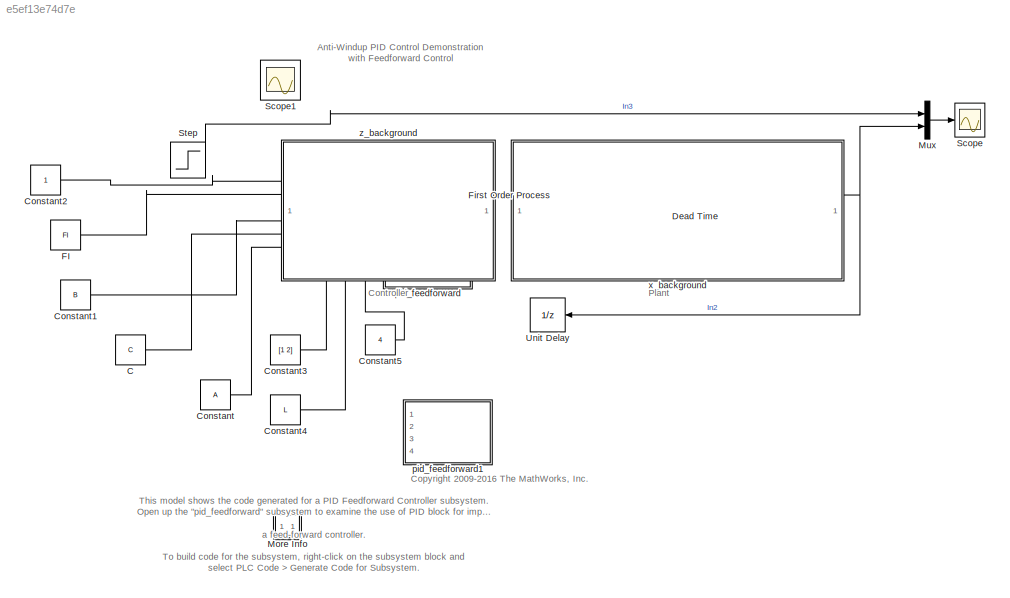
MODEL slx_e5ef13e74d7e
KIND model
CONFIG AbsTol = auto
CONFIG EnableMultiTasking = on
CONFIG FixedStep = 1
CONFIG MaxStep = auto
CONFIG MinStep = auto
CONFIG RelTol = 1e-5
CONFIG SampleTimeConstraint = Unconstrained
CONFIG Solver = ode8
CONFIG SolverName = ode8
CONFIG StartTime = 0.0
CONFIG StopTime = 200
BLOCK [Constant] C
  Value = C
  VectorParams1D = off
BLOCK [Constant] Constant
  Value = A
  VectorParams1D = off
BLOCK [Constant] Constant1
  Value = B
  VectorParams1D = off
BLOCK [Constant] Constant2
  VectorParams1D = off
BLOCK [Constant] Constant3
  Value = [1 2]
  VectorParams1D = off
BLOCK [Constant] Constant4
  Value = L
  VectorParams1D = off
BLOCK [Constant] Constant5
  Value = 4
  VectorParams1D = off
BLOCK [TransportDelay] Dead Time
  BufferSize = 2048
  DelayTime = 2
  Ports = [1, 1]
BLOCK [Constant] FI
  Value = FI
BLOCK [TransferFcn] First Order Process
  Denominator = [10 1]
  Numerator = 1
BLOCK [SubSystem] More Info
  OpenFcn = showdemo('sldemo_antiwindup')
  Ports = []
  RequestExecContextInheritance = off
BLOCK [Mux] Mux
  DisplayOption = bar
  Inputs = 2
  Ports = [2, 1]
BLOCK [Scope] Scope
  Floating = off
  NumInputPorts = 1
  Ports = [1]
  ScopeSpecificationString = Simulink.scopes.TimeScopeBlockCfg('CurrentConfiguration', extmgr.ConfigurationSet(extmgr.Configuration('Core','General UI',true,'MessageLogAutoOpenMode','for warn/fail messages','ShowCloseAll',true,'ShowBringAllForward',true),extmgr.Configuration('Core','Source UI',true,'PlaybackToolbar',true),extmgr.Configuration('Sources','WiredSimulink',true,'PointsPerSignal',50000,'DataLoggingLimitDataPoints',...<+1203ch>
BLOCK [Scope] Scope1
  Floating = off
  IOType = viewer
  NumInputPorts = 1
  Ports = []
  ScopeSpecificationString = Simulink.scopes.TimeScopeBlockCfg('CurrentConfiguration', extmgr.ConfigurationSet(extmgr.Configuration('Core','General UI',true),extmgr.Configuration('Core','Source UI',true),extmgr.Configuration('Sources','WiredSimulink',true,'DataLoggingMaxPoints','7500','DataLoggingSaveFormat','Array','DataLoggingDecimation','1','DataLoggingDecimateData',true),extmgr.Configuration('Visuals','Time Domain',true,'...<+1653ch>
BLOCK [Step] Step
  After = 5
  Before = 10
  SampleTime = 0
  Time = 80
BLOCK [UnitDelay] Unit Delay
  InputProcessing = Elements as channels (sample based)
  SampleTime = -1
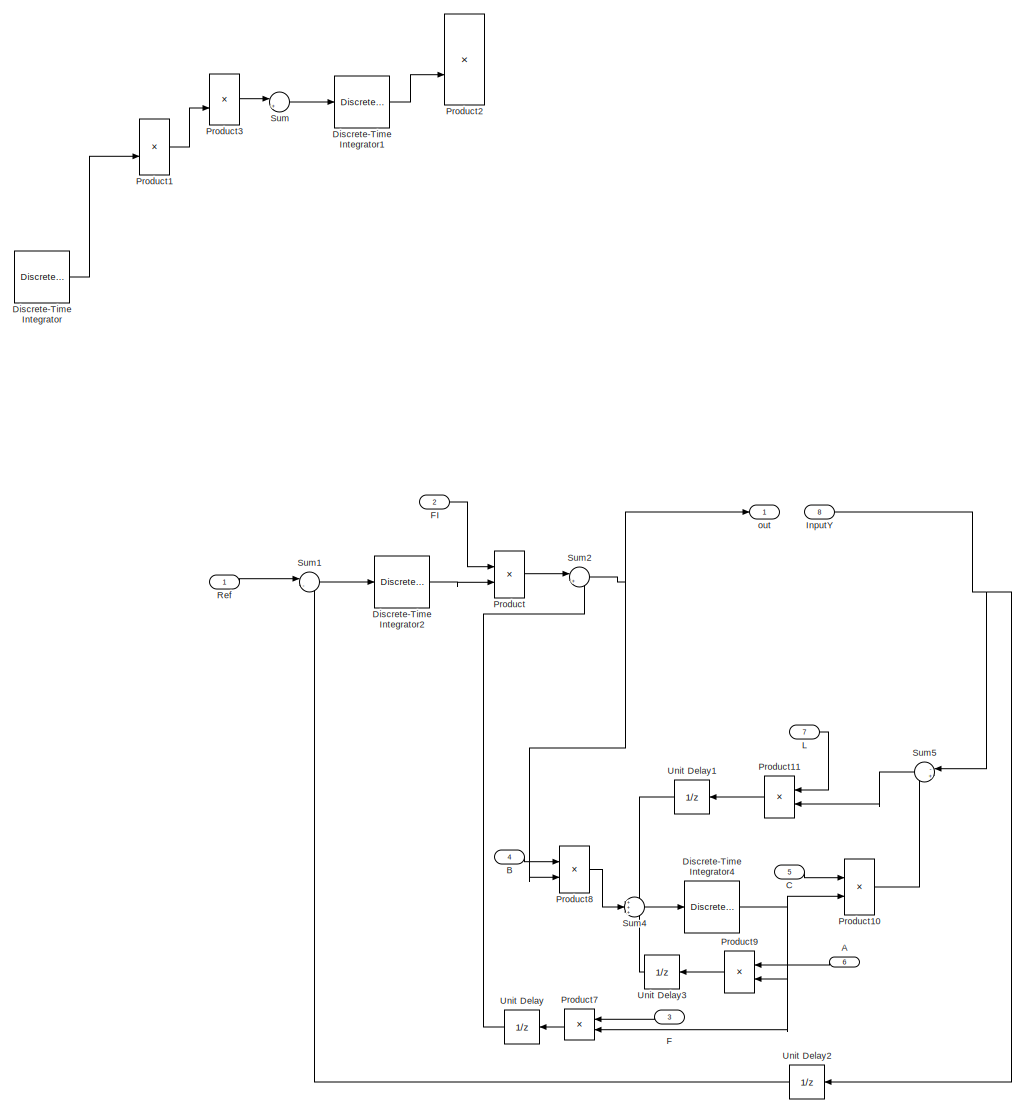
[diagram: pid_feedforward - part 1/1, most of the canvas]
BLOCK [SubSystem] pid_feedforward
  Ports = [8, 1]
  RequestExecContextInheritance = off
  TreatAsAtomicUnit = on
BLOCK [Inport] pid_feedforward/A
  IconDisplay = Port number
  Port = 6
BLOCK [Inport] pid_feedforward/B
  IconDisplay = Port number
  Port = 4
BLOCK [Inport] pid_feedforward/C
  IconDisplay = Port number
  Port = 5
BLOCK [DiscreteIntegrator] pid_feedforward/Discrete-Time Integrator
  Commented = on
  ICPrevOutput = DiscIntNeverNeededParam
  ICPrevScaledInput = DiscIntNeverNeededParam
  InitialConditionSetting = Auto
  IntegratorMethod = Integration: Trapezoidal
  Ports = [1, 1]
  SampleTime = -1
BLOCK [DiscreteIntegrator] pid_feedforward/Discrete-Time Integrator1
  Commented = on
  ICPrevOutput = DiscIntNeverNeededParam
  ICPrevScaledInput = DiscIntNeverNeededParam
  InitialConditionSetting = Auto
  IntegratorMethod = Integration: Trapezoidal
  Ports = [1, 1]
  SampleTime = -1
BLOCK [DiscreteIntegrator] pid_feedforward/Discrete-Time Integrator2
  ICPrevOutput = DiscIntNeverNeededParam
  ICPrevScaledInput = DiscIntNeverNeededParam
  InitialConditionSetting = Auto
  IntegratorMethod = Integration: Trapezoidal
  Ports = [1, 1]
  SampleTime = -1
BLOCK [DiscreteIntegrator] pid_feedforward/Discrete-Time Integrator4
  ICPrevOutput = DiscIntNeverNeededParam
  ICPrevScaledInput = DiscIntNeverNeededParam
  InitialConditionSetting = Auto
  IntegratorMethod = Integration: Trapezoidal
  Ports = [1, 1]
  SampleTime = -1
BLOCK [Inport] pid_feedforward/F
  IconDisplay = Port number
  Port = 3
BLOCK [Inport] pid_feedforward/FI
  IconDisplay = Port number
  Port = 2
BLOCK [Inport] pid_feedforward/InputY
  IconDisplay = Port number
  Port = 8
BLOCK [Inport] pid_feedforward/L
  IconDisplay = Port number
  Port = 7
BLOCK [Product] pid_feedforward/Product
  InputSameDT = off
  Multiplication = Matrix(*)
  OutDataTypeStr = Inherit: Inherit via internal rule
  Ports = [2, 1]
  RndMeth = Floor
  SaturateOnIntegerOverflow = off
BLOCK [Product] pid_feedforward/Product1
  Commented = on
  InputSameDT = off
  Multiplication = Matrix(*)
  OutDataTypeStr = Inherit: Inherit via internal rule
  Ports = [2, 1]
  RndMeth = Floor
  SaturateOnIntegerOverflow = off
BLOCK [Product] pid_feedforward/Product10
  InputSameDT = off
  Multiplication = Matrix(*)
  OutDataTypeStr = Inherit: Inherit via internal rule
  Ports = [2, 1]
  RndMeth = Floor
  SaturateOnIntegerOverflow = off
BLOCK [Product] pid_feedforward/Product11
  InputSameDT = off
  Multiplication = Matrix(*)
  OutDataTypeStr = Inherit: Inherit via internal rule
  Ports = [2, 1]
  RndMeth = Floor
  SaturateOnIntegerOverflow = off
BLOCK [Product] pid_feedforward/Product2
  Commented = on
  InputSameDT = off
  Multiplication = Matrix(*)
  OutDataTypeStr = Inherit: Inherit via internal rule
  Ports = [2, 1]
  RndMeth = Floor
  SaturateOnIntegerOverflow = off
BLOCK [Product] pid_feedforward/Product3
  Commented = on
  InputSameDT = off
  Multiplication = Matrix(*)
  OutDataTypeStr = Inherit: Inherit via internal rule
  Ports = [2, 1]
  RndMeth = Floor
  SaturateOnIntegerOverflow = off
BLOCK [Product] pid_feedforward/Product7
  InputSameDT = off
  Multiplication = Matrix(*)
  OutDataTypeStr = Inherit: Inherit via internal rule
  Ports = [2, 1]
  RndMeth = Floor
  SaturateOnIntegerOverflow = off
BLOCK [Product] pid_feedforward/Product8
  InputSameDT = off
  Multiplication = Matrix(*)
  OutDataTypeStr = Inherit: Inherit via internal rule
  Ports = [2, 1]
  RndMeth = Floor
  SaturateOnIntegerOverflow = off
BLOCK [Product] pid_feedforward/Product9
  InputSameDT = off
  Multiplication = Matrix(*)
  OutDataTypeStr = Inherit: Inherit via internal rule
  Ports = [2, 1]
  RndMeth = Floor
  SaturateOnIntegerOverflow = off
BLOCK [Inport] pid_feedforward/Ref
  IconDisplay = Port number
BLOCK [Sum] pid_feedforward/Sum
  Commented = on
  IconShape = round
  InputSameDT = off
  Inputs = |++
  OutDataTypeStr = Inherit: Inherit via internal rule
  Ports = [2, 1]
  SaturateOnIntegerOverflow = off
BLOCK [Sum] pid_feedforward/Sum1
  IconShape = round
  InputSameDT = off
  Inputs = |-+
  OutDataTypeStr = Inherit: Inherit via internal rule
  Ports = [2, 1]
  SaturateOnIntegerOverflow = off
BLOCK [Sum] pid_feedforward/Sum2
  IconShape = round
  InputSameDT = off
  Inputs = |++
  OutDataTypeStr = Inherit: Inherit via internal rule
  Ports = [2, 1]
  SaturateOnIntegerOverflow = off
BLOCK [Sum] pid_feedforward/Sum4
  IconShape = round
  InputSameDT = off
  Inputs = +++
  OutDataTypeStr = Inherit: Inherit via internal rule
  Ports = [3, 1]
  SaturateOnIntegerOverflow = off
BLOCK [Sum] pid_feedforward/Sum5
  IconShape = round
  InputSameDT = off
  Inputs = -+
  OutDataTypeStr = Inherit: Inherit via internal rule
  Ports = [2, 1]
  SaturateOnIntegerOverflow = off
BLOCK [UnitDelay] pid_feedforward/Unit Delay
  InputProcessing = Elements as channels (sample based)
  SampleTime = -1
BLOCK [UnitDelay] pid_feedforward/Unit Delay1
  InputProcessing = Elements as channels (sample based)
  SampleTime = -1
BLOCK [UnitDelay] pid_feedforward/Unit Delay2
  InputProcessing = Elements as channels (sample based)
  SampleTime = -1
BLOCK [UnitDelay] pid_feedforward/Unit Delay3
  InputProcessing = Elements as channels (sample based)
  SampleTime = -1
BLOCK [Outport] pid_feedforward/out
  IconDisplay = Port number
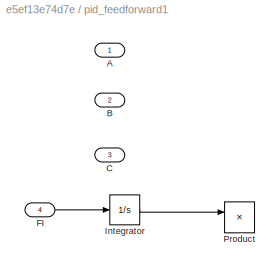
BLOCK [SubSystem] pid_feedforward1
  Ports = [4]
  RequestExecContextInheritance = off
  TreatAsAtomicUnit = on
BLOCK [Inport] pid_feedforward1/A
  IconDisplay = Port number
BLOCK [Inport] pid_feedforward1/B
  IconDisplay = Port number
  Port = 2
BLOCK [Inport] pid_feedforward1/C
  IconDisplay = Port number
  Port = 3
BLOCK [Inport] pid_feedforward1/FI
  IconDisplay = Port number
  Port = 4
BLOCK [Integrator] pid_feedforward1/Integrator
  Ports = [1, 1]
BLOCK [Product] pid_feedforward1/Product
  InputSameDT = off
  Multiplication = Matrix(*)
  OutDataTypeStr = Inherit: Inherit via internal rule
  Ports = [2, 1]
  RndMeth = Floor
  SaturateOnIntegerOverflow = off
BLOCK [SubSystem] x_background
  Ports = []
  RequestExecContextInheritance = off
BLOCK [SubSystem] z_background
  Ports = []
  RequestExecContextInheritance = off
  TreatAsAtomicUnit = on
ANNOTATION (root): Anti-Windup PID Control Demonstration with Feedforward Control
ANNOTATION (root): Controller
ANNOTATION (root): <copyright redacted>
ANNOTATION (root): Plant
ANNOTATION (root): This model shows the code generated for a PID Feedforward Controller subsystem. Open up the "pid_feedforward" subsystem to examine the use of PID block for implementing a feed-forward controller. To build code for the subsystem, right-click on the subsystem block and select PLC Code > Generate Code for Subsystem. The Diagnostic Viewer displays hyperlinks to the generated code files, click the link...<+30ch>
LINE C:1 -> pid_feedforward:5
LINE Constant1:1 -> pid_feedforward:4
LINE Constant2:1 -> pid_feedforward:1
LINE Constant3:1 -> pid_feedforward:3
LINE Constant4:1 -> pid_feedforward:7
LINE Constant5:1 -> pid_feedforward:8
LINE Constant:1 -> pid_feedforward:6
NET Dead Time:1 -> Mux:2, Unit Delay:1
LINE FI:1 -> pid_feedforward:2
LINE First Order Process:1 -> Dead Time:1
LINE Mux:1 -> Scope:1
LINE Step:1 -> Mux:1
LINE pid_feedforward/A:1 -> pid_feedforward/Product9:1
LINE pid_feedforward/B:1 -> pid_feedforward/Product8:1
LINE pid_feedforward/C:1 -> pid_feedforward/Product10:1
LINE pid_feedforward/Discrete-Time Integrator1:1 -> pid_feedforward/Product2:2
LINE pid_feedforward/Discrete-Time Integrator2:1 -> pid_feedforward/Product:2
NET pid_feedforward/Discrete-Time Integrator4:1 -> pid_feedforward/Product10:2, pid_feedforward/Product7:2, pid_feedforward/Product9:2
LINE pid_feedforward/Discrete-Time Integrator:1 -> pid_feedforward/Product1:2
LINE pid_feedforward/F:1 -> pid_feedforward/Product7:1
LINE pid_feedforward/FI:1 -> pid_feedforward/Product:1
NET pid_feedforward/InputY:1 -> pid_feedforward/Sum5:1, pid_feedforward/Unit Delay2:1
LINE pid_feedforward/L:1 -> pid_feedforward/Product11:1
LINE pid_feedforward/Product10:1 -> pid_feedforward/Sum5:2
LINE pid_feedforward/Product11:1 -> pid_feedforward/Unit Delay1:1
LINE pid_feedforward/Product1:1 -> pid_feedforward/Product3:2
LINE pid_feedforward/Product3:1 -> pid_feedforward/Sum:1
LINE pid_feedforward/Product7:1 -> pid_feedforward/Unit Delay:1
LINE pid_feedforward/Product8:1 -> pid_feedforward/Sum4:2
LINE pid_feedforward/Product9:1 -> pid_feedforward/Unit Delay3:1
LINE pid_feedforward/Product:1 -> pid_feedforward/Sum2:1
LINE pid_feedforward/Ref:1 -> pid_feedforward/Sum1:1
LINE pid_feedforward/Sum1:1 -> pid_feedforward/Discrete-Time Integrator2:1
NET pid_feedforward/Sum2:1 -> pid_feedforward/Product8:2, pid_feedforward/out:1
LINE pid_feedforward/Sum4:1 -> pid_feedforward/Discrete-Time Integrator4:1
LINE pid_feedforward/Sum5:1 -> pid_feedforward/Product11:2
LINE pid_feedforward/Sum:1 -> pid_feedforward/Discrete-Time Integrator1:1
LINE pid_feedforward/Unit Delay1:1 -> pid_feedforward/Sum4:1
LINE pid_feedforward/Unit Delay2:1 -> pid_feedforward/Sum1:2
LINE pid_feedforward/Unit Delay3:1 -> pid_feedforward/Sum4:3
LINE pid_feedforward/Unit Delay:1 -> pid_feedforward/Sum2:2
LINE pid_feedforward1/FI:1 -> pid_feedforward1/Integrator:1
LINE pid_feedforward1/Integrator:1 -> pid_feedforward1/Product:1
note: NET lines group one-source signal fan-out (src -> all destinations, sorted); 1:1 wires keep LINE
